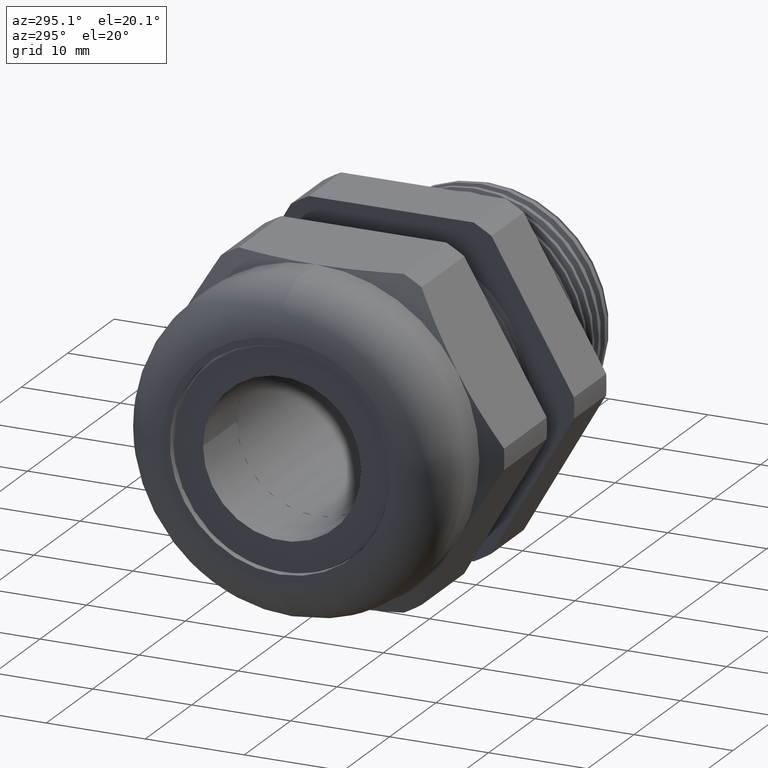
[diagram: clean part render]
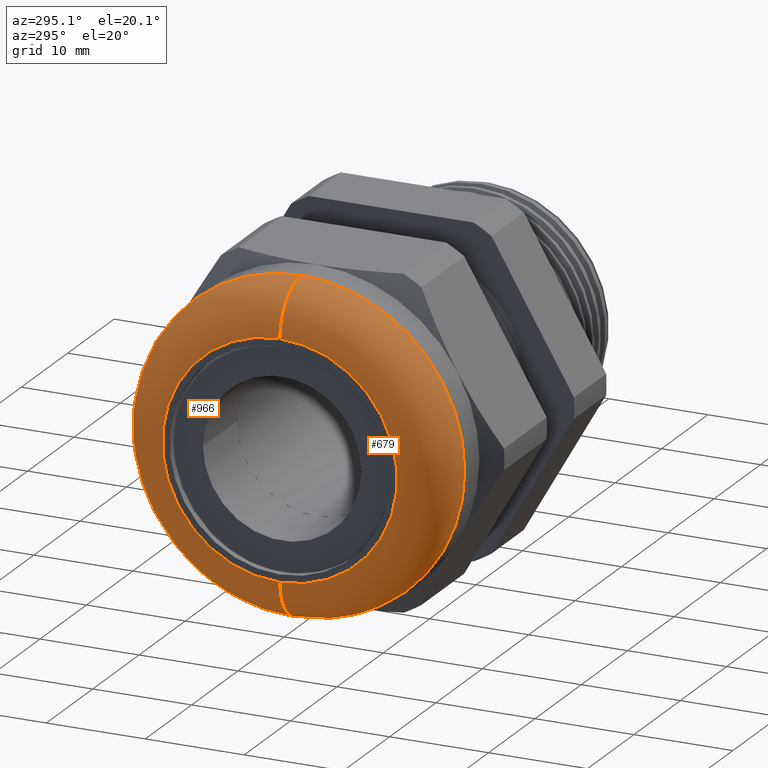
[diagram: same view with one multi-face feature highlighted, each face labeled with its STEP entity id]
A machine part, auxiliary view. The highlighted faces form ONE feature: a constant-radius fillet chain: 2 tangent blend faces with common blend radius 4.6482 mm. The faces share edges in the B-rep.
Their STEP definitions:
[1] entity #679 (Torus):
#196 = EDGE_CURVE ( 'NONE', #956, #203, #1328, .T. ) ;
#197 = VERTEX_POINT ( 'NONE', #1323 ) ;
#202 = EDGE_CURVE ( 'NONE', #204, #197, #1312, .T. ) ;
#203 = VERTEX_POINT ( 'NONE', #1307 ) ;
#204 = VERTEX_POINT ( 'NONE', #1306 ) ;
#363 = ORIENTED_EDGE ( 'NONE', *, *, #3683, .F. ) ;
#398 = ORIENTED_EDGE ( 'NONE', *, *, #3377, .F. ) ;
#415 = ORIENTED_EDGE ( 'NONE', *, *, #202, .T. ) ;
#529 = EDGE_LOOP ( 'NONE', ( #627, #363, #415, #398 ) ) ;
#627 = ORIENTED_EDGE ( 'NONE', *, *, #196, .F. ) ;
#679 = ADVANCED_FACE ( 'NONE', ( #1712 ), #1711, .T. ) ;
#956 = VERTEX_POINT ( 'NONE', #2219 ) ;
#1306 = CARTESIAN_POINT ( 'NONE',  ( -1.220000000000000200, 0.0000000000000000000, -0.4669999999999996900 ) ) ;
#1307 = CARTESIAN_POINT ( 'NONE',  ( -1.036999999999999900, 0.0000000000000000000, 0.6499999999999998000 ) ) ;
#1308 = DIRECTION ( 'NONE',  ( 0.0000000000000000000, 0.0000000000000000000, -1.000000000000000000 ) ) ;
#1309 = DIRECTION ( 'NONE',  ( 0.0000000000000000000, -1.000000000000000000, 0.0000000000000000000 ) ) ;
#1310 = CARTESIAN_POINT ( 'NONE',  ( -1.036999999999999900, 0.0000000000000000000, -0.4669999999999996900 ) ) ;
#1311 = AXIS2_PLACEMENT_3D ( 'NONE', #1310, #1309, #1308 ) ;
#1312 = CIRCLE ( 'NONE', #1311, 0.1830000000000000800 ) ;
#1323 = CARTESIAN_POINT ( 'NONE',  ( -1.036999999999999900, 7.960204194457793000E-017, -0.6499999999999998000 ) ) ;
#1324 = DIRECTION ( 'NONE',  ( 0.0000000000000000000, 1.224646799147353000E-016, 1.000000000000000000 ) ) ;
#1325 = DIRECTION ( 'NONE',  ( 0.0000000000000000000, 1.000000000000000000, -1.224646799147353200E-016 ) ) ;
#1326 = CARTESIAN_POINT ( 'NONE',  ( -1.036999999999999900, 5.719100552018135400E-017, 0.4669999999999996900 ) ) ;
#1327 = AXIS2_PLACEMENT_3D ( 'NONE', #1326, #1325, #1324 ) ;
#1328 = CIRCLE ( 'NONE', #1327, 0.1830000000000000800 ) ;
#1711 = TOROIDAL_SURFACE ( 'NONE', #1776, 0.4669999999999996900, 0.1830000000000000800 ) ;
#1712 = FACE_OUTER_BOUND ( 'NONE', #529, .T. ) ;
#1773 = DIRECTION ( 'NONE',  ( 0.0000000000000000000, 0.0000000000000000000, -1.000000000000000000 ) ) ;
#1774 = DIRECTION ( 'NONE',  ( 1.000000000000000000, 0.0000000000000000000, 0.0000000000000000000 ) ) ;
#1775 = CARTESIAN_POINT ( 'NONE',  ( -1.036999999999999900, 0.0000000000000000000, 0.0000000000000000000 ) ) ;
#1776 = AXIS2_PLACEMENT_3D ( 'NONE', #1775, #1774, #1773 ) ;
#2219 = CARTESIAN_POINT ( 'NONE',  ( -1.220000000000000200, 6.839652373237964200E-017, 0.4669999999999996900 ) ) ;
#2698 = DIRECTION ( 'NONE',  ( 0.0000000000000000000, 0.0000000000000000000, -1.000000000000000000 ) ) ;
#2699 = DIRECTION ( 'NONE',  ( 1.000000000000000000, 0.0000000000000000000, 0.0000000000000000000 ) ) ;
#2700 = CARTESIAN_POINT ( 'NONE',  ( -1.036999999999999900, 0.0000000000000000000, 0.0000000000000000000 ) ) ;
#2701 = AXIS2_PLACEMENT_3D ( 'NONE', #2700, #2699, #2698 ) ;
#2702 = CIRCLE ( 'NONE', #2701, 0.6499999999999998000 ) ;
#3094 = DIRECTION ( 'NONE',  ( 0.0000000000000000000, 0.0000000000000000000, -1.000000000000000000 ) ) ;
#3095 = DIRECTION ( 'NONE',  ( -1.000000000000000000, 0.0000000000000000000, 0.0000000000000000000 ) ) ;
#3096 = CARTESIAN_POINT ( 'NONE',  ( -1.220000000000000200, 0.0000000000000000000, 0.0000000000000000000 ) ) ;
#3097 = AXIS2_PLACEMENT_3D ( 'NONE', #3096, #3095, #3094 ) ;
#3098 = CIRCLE ( 'NONE', #3097, 0.4669999999999996900 ) ;
#3377 = EDGE_CURVE ( 'NONE', #203, #197, #2702, .T. ) ;
#3683 = EDGE_CURVE ( 'NONE', #204, #956, #3098, .T. ) ;
[2] entity #966 (Torus):
#196 = EDGE_CURVE ( 'NONE', #956, #203, #1328, .T. ) ;
#197 = VERTEX_POINT ( 'NONE', #1323 ) ;
#199 = EDGE_CURVE ( 'NONE', #197, #203, #1317, .T. ) ;
#201 = ORIENTED_EDGE ( 'NONE', *, *, #199, .F. ) ;
#202 = EDGE_CURVE ( 'NONE', #204, #197, #1312, .T. ) ;
#203 = VERTEX_POINT ( 'NONE', #1307 ) ;
#204 = VERTEX_POINT ( 'NONE', #1306 ) ;
#206 = ORIENTED_EDGE ( 'NONE', *, *, #196, .T. ) ;
#208 = ORIENTED_EDGE ( 'NONE', *, *, #202, .F. ) ;
#955 = EDGE_CURVE ( 'NONE', #956, #204, #2218, .T. ) ;
#956 = VERTEX_POINT ( 'NONE', #2219 ) ;
#960 = EDGE_LOOP ( 'NONE', ( #961, #206, #201, #208 ) ) ;
#961 = ORIENTED_EDGE ( 'NONE', *, *, #955, .F. ) ;
#966 = ADVANCED_FACE ( 'NONE', ( #2262 ), #2260, .T. ) ;
#1306 = CARTESIAN_POINT ( 'NONE',  ( -1.220000000000000200, 0.0000000000000000000, -0.4669999999999996900 ) ) ;
#1307 = CARTESIAN_POINT ( 'NONE',  ( -1.036999999999999900, 0.0000000000000000000, 0.6499999999999998000 ) ) ;
#1308 = DIRECTION ( 'NONE',  ( 0.0000000000000000000, 0.0000000000000000000, -1.000000000000000000 ) ) ;
#1309 = DIRECTION ( 'NONE',  ( 0.0000000000000000000, -1.000000000000000000, 0.0000000000000000000 ) ) ;
#1310 = CARTESIAN_POINT ( 'NONE',  ( -1.036999999999999900, 0.0000000000000000000, -0.4669999999999996900 ) ) ;
#1311 = AXIS2_PLACEMENT_3D ( 'NONE', #1310, #1309, #1308 ) ;
#1312 = CIRCLE ( 'NONE', #1311, 0.1830000000000000800 ) ;
#1313 = DIRECTION ( 'NONE',  ( 0.0000000000000000000, 0.0000000000000000000, -1.000000000000000000 ) ) ;
#1314 = DIRECTION ( 'NONE',  ( 1.000000000000000000, 0.0000000000000000000, 0.0000000000000000000 ) ) ;
#1315 = CARTESIAN_POINT ( 'NONE',  ( -1.036999999999999900, 0.0000000000000000000, 0.0000000000000000000 ) ) ;
#1316 = AXIS2_PLACEMENT_3D ( 'NONE', #1315, #1314, #1313 ) ;
#1317 = CIRCLE ( 'NONE', #1316, 0.6499999999999998000 ) ;
#1323 = CARTESIAN_POINT ( 'NONE',  ( -1.036999999999999900, 7.960204194457793000E-017, -0.6499999999999998000 ) ) ;
#1324 = DIRECTION ( 'NONE',  ( 0.0000000000000000000, 1.224646799147353000E-016, 1.000000000000000000 ) ) ;
#1325 = DIRECTION ( 'NONE',  ( 0.0000000000000000000, 1.000000000000000000, -1.224646799147353200E-016 ) ) ;
#1326 = CARTESIAN_POINT ( 'NONE',  ( -1.036999999999999900, 5.719100552018135400E-017, 0.4669999999999996900 ) ) ;
#1327 = AXIS2_PLACEMENT_3D ( 'NONE', #1326, #1325, #1324 ) ;
#1328 = CIRCLE ( 'NONE', #1327, 0.1830000000000000800 ) ;
#2215 = DIRECTION ( 'NONE',  ( 0.0000000000000000000, 0.0000000000000000000, -1.000000000000000000 ) ) ;
#2216 = DIRECTION ( 'NONE',  ( -1.000000000000000000, 0.0000000000000000000, 0.0000000000000000000 ) ) ;
#2217 = AXIS2_PLACEMENT_3D ( 'NONE', #2225, #2216, #2215 ) ;
#2218 = CIRCLE ( 'NONE', #2217, 0.4669999999999996900 ) ;
#2219 = CARTESIAN_POINT ( 'NONE',  ( -1.220000000000000200, 6.839652373237964200E-017, 0.4669999999999996900 ) ) ;
#2225 = CARTESIAN_POINT ( 'NONE',  ( -1.220000000000000200, 0.0000000000000000000, 0.0000000000000000000 ) ) ;
#2257 = DIRECTION ( 'NONE',  ( 0.0000000000000000000, 0.0000000000000000000, -1.000000000000000000 ) ) ;
#2258 = DIRECTION ( 'NONE',  ( 1.000000000000000000, 0.0000000000000000000, 0.0000000000000000000 ) ) ;
#2259 = AXIS2_PLACEMENT_3D ( 'NONE', #2261, #2258, #2257 ) ;
#2260 = TOROIDAL_SURFACE ( 'NONE', #2259, 0.4669999999999996900, 0.1830000000000000800 ) ;
#2261 = CARTESIAN_POINT ( 'NONE',  ( -1.036999999999999900, 0.0000000000000000000, 0.0000000000000000000 ) ) ;
#2262 = FACE_OUTER_BOUND ( 'NONE', #960, .T. ) ;